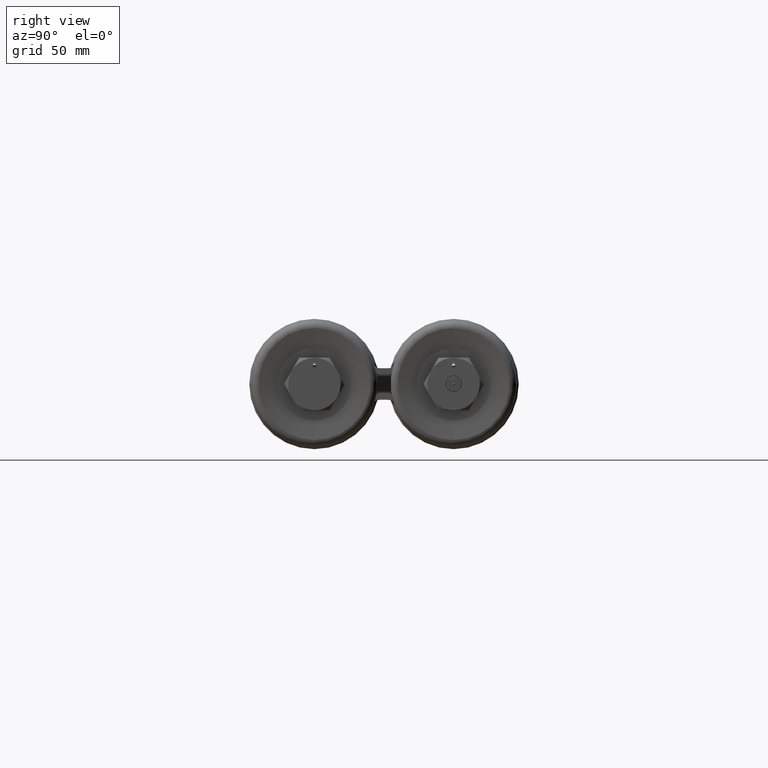
[diagram: clean part render]
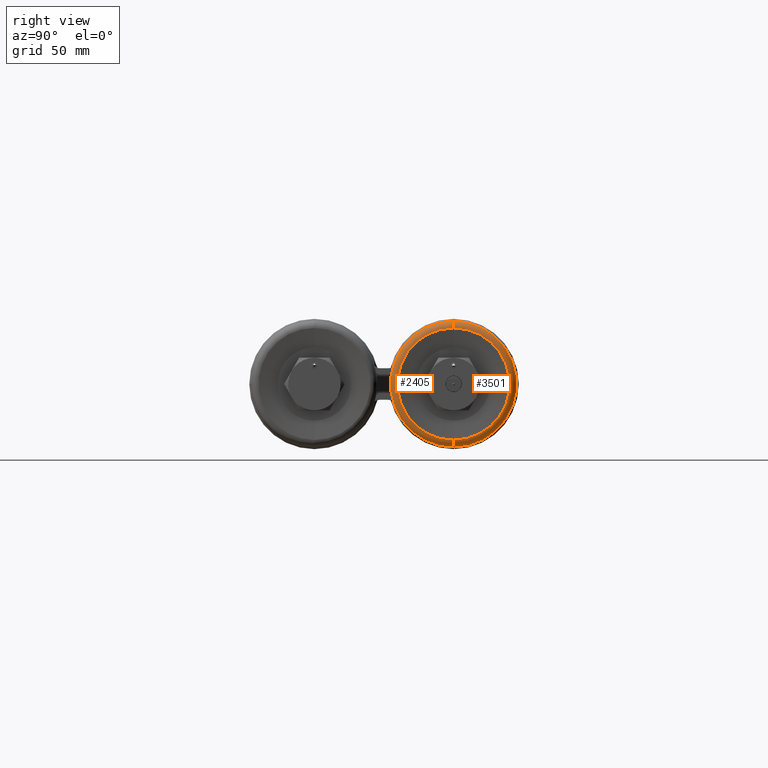
[diagram: same view with one multi-face feature highlighted, each face labeled with its STEP entity id]
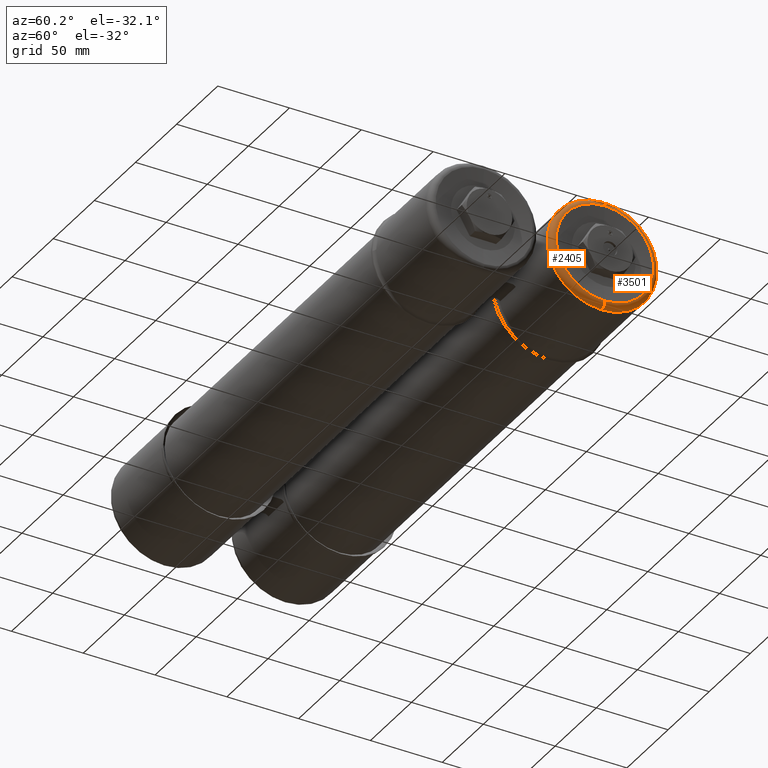
[diagram: same view with one multi-face feature highlighted, each face labeled with its STEP entity id]
A machine part, right view. The highlighted faces form ONE feature: a constant-radius fillet chain: 2 tangent blend faces with common blend radius 4.1656 mm. The faces share edges in the B-rep.
A second angle (auxiliary view) of the same feature is appended — it is thin or edge-on in the first view.
Their STEP definitions:
[1] entity #2405 (Torus):
#848 = VERTEX_POINT ( 'NONE', #37305 ) ;
#1687 = VERTEX_POINT ( 'NONE', #24630 ) ;
#2405 = ADVANCED_FACE ( 'NONE', ( #13390 ), #16985, .T. ) ;
#4310 = DIRECTION ( 'NONE',  ( 6.121189672418027576E-17, -1.000000000000000000, -4.744468706796572334E-16 ) ) ;
#4321 = DIRECTION ( 'NONE',  ( -5.226952353544025296E-16, -3.644893920832906790E-16, 1.000000000000000000 ) ) ;
#4595 = CIRCLE ( 'NONE', #7100, 0.1639999999999999514 ) ;
#5112 = EDGE_CURVE ( 'NONE', #34993, #30570, #4595, .T. ) ;
#5935 = CARTESIAN_POINT ( 'NONE',  ( 15.09600000000000009, 3.311999999999966082, -1.498999999999999222 ) ) ;
#6803 = ORIENTED_EDGE ( 'NONE', *, *, #27813, .F. ) ;
#7100 = AXIS2_PLACEMENT_3D ( 'NONE', #26709, #12050, #38293 ) ;
#7965 = EDGE_LOOP ( 'NONE', ( #29999, #16382, #29954, #6803 ) ) ;
#8788 = DIRECTION ( 'NONE',  ( -1.000000000000000000, -6.121189672418002924E-17, -5.226952353544025296E-16 ) ) ;
#10408 = CARTESIAN_POINT ( 'NONE',  ( 15.26000000000000334, 3.311999999999965194, 3.819233170451234709E-16 ) ) ;
#10426 = AXIS2_PLACEMENT_3D ( 'NONE', #10408, #37036, #22521 ) ;
#12050 = DIRECTION ( 'NONE',  ( -6.121189672418033739E-17, 1.000000000000000000, 5.969115505943929732E-16 ) ) ;
#13390 = FACE_OUTER_BOUND ( 'NONE', #7965, .T. ) ;
#16294 = DIRECTION ( 'NONE',  ( 0.000000000000000000, 0.000000000000000000, -1.000000000000000000 ) ) ;
#16382 = ORIENTED_EDGE ( 'NONE', *, *, #20228, .T. ) ;
#16674 = CIRCLE ( 'NONE', #19787, 1.498999999999999666 ) ;
#16985 = TOROIDAL_SURFACE ( 'NONE', #31973, 1.334999999999999520, 0.1640000000000000069 ) ;
#19787 = AXIS2_PLACEMENT_3D ( 'NONE', #36017, #8788, #23866 ) ;
#20228 = EDGE_CURVE ( 'NONE', #34993, #848, #22279, .T. ) ;
#22279 = CIRCLE ( 'NONE', #10426, 1.334999999999999742 ) ;
#22521 = DIRECTION ( 'NONE',  ( 0.000000000000000000, -4.092656170283541089E-16, 1.000000000000000000 ) ) ;
#23866 = DIRECTION ( 'NONE',  ( 0.000000000000000000, -3.644893920832907283E-16, 1.000000000000000000 ) ) ;
#24630 = CARTESIAN_POINT ( 'NONE',  ( 15.09600000000000009, 3.311999999999964750, 1.499000000000000110 ) ) ;
#25680 = CARTESIAN_POINT ( 'NONE',  ( 15.09600000000000364, 3.311999999999964750, 1.335000000000000187 ) ) ;
#26709 = CARTESIAN_POINT ( 'NONE',  ( 15.09600000000000364, 3.311999999999965638, -1.334999999999999520 ) ) ;
#26841 = EDGE_CURVE ( 'NONE', #848, #1687, #28539, .T. ) ;
#27591 = CARTESIAN_POINT ( 'NONE',  ( 15.26000000000000334, 3.311999999999966082, -1.334999999999999298 ) ) ;
#27813 = EDGE_CURVE ( 'NONE', #30570, #1687, #16674, .T. ) ;
#28539 = CIRCLE ( 'NONE', #36029, 0.1639999999999999514 ) ;
#29954 = ORIENTED_EDGE ( 'NONE', *, *, #26841, .T. ) ;
#29999 = ORIENTED_EDGE ( 'NONE', *, *, #5112, .F. ) ;
#30570 = VERTEX_POINT ( 'NONE', #5935 ) ;
#31191 = DIRECTION ( 'NONE',  ( -1.000000000000000000, -6.121189672418002924E-17, -5.226952353544025296E-16 ) ) ;
#31973 = AXIS2_PLACEMENT_3D ( 'NONE', #34099, #31191, #4321 ) ;
#34099 = CARTESIAN_POINT ( 'NONE',  ( 15.09600000000000364, 3.311999999999965194, 2.995077356023238708E-16 ) ) ;
#34993 = VERTEX_POINT ( 'NONE', #27591 ) ;
#36017 = CARTESIAN_POINT ( 'NONE',  ( 15.09600000000000009, 3.311999999999965194, 2.995077356023228848E-16 ) ) ;
#36029 = AXIS2_PLACEMENT_3D ( 'NONE', #25680, #4310, #16294 ) ;
#37036 = DIRECTION ( 'NONE',  ( -1.000000000000000000, -6.121189672418002924E-17, -5.226952353544025296E-16 ) ) ;
#37305 = CARTESIAN_POINT ( 'NONE',  ( 15.26000000000000334, 3.311999999999964750, 1.335000000000000187 ) ) ;
#38293 = DIRECTION ( 'NONE',  ( 0.000000000000000000, 0.000000000000000000, 1.000000000000000000 ) ) ;
[2] entity #3501 (Torus):
#203 = TOROIDAL_SURFACE ( 'NONE', #35867, 1.334999999999999520, 0.1640000000000000069 ) ;
#848 = VERTEX_POINT ( 'NONE', #37305 ) ;
#1219 = AXIS2_PLACEMENT_3D ( 'NONE', #34398, #24644, #22088 ) ;
#1687 = VERTEX_POINT ( 'NONE', #24630 ) ;
#2016 = ORIENTED_EDGE ( 'NONE', *, *, #5112, .T. ) ;
#2226 = DIRECTION ( 'NONE',  ( -1.000000000000000000, -6.121189672418002924E-17, -5.226952353544025296E-16 ) ) ;
#3501 = ADVANCED_FACE ( 'NONE', ( #32467 ), #203, .T. ) ;
#4310 = DIRECTION ( 'NONE',  ( 6.121189672418027576E-17, -1.000000000000000000, -4.744468706796572334E-16 ) ) ;
#4595 = CIRCLE ( 'NONE', #7100, 0.1639999999999999514 ) ;
#5112 = EDGE_CURVE ( 'NONE', #34993, #30570, #4595, .T. ) ;
#5606 = DIRECTION ( 'NONE',  ( -5.226952353544025296E-16, -3.644893920832906790E-16, 1.000000000000000000 ) ) ;
#5935 = CARTESIAN_POINT ( 'NONE',  ( 15.09600000000000009, 3.311999999999966082, -1.498999999999999222 ) ) ;
#7100 = AXIS2_PLACEMENT_3D ( 'NONE', #26709, #12050, #38293 ) ;
#7507 = ORIENTED_EDGE ( 'NONE', *, *, #32642, .T. ) ;
#8358 = DIRECTION ( 'NONE',  ( -1.000000000000000000, -6.121189672418002924E-17, -5.226952353544025296E-16 ) ) ;
#11115 = CARTESIAN_POINT ( 'NONE',  ( 15.26000000000000334, 3.311999999999965194, 3.819233170451234709E-16 ) ) ;
#12050 = DIRECTION ( 'NONE',  ( -6.121189672418033739E-17, 1.000000000000000000, 5.969115505943929732E-16 ) ) ;
#14237 = DIRECTION ( 'NONE',  ( 0.000000000000000000, -4.092656170283541089E-16, 1.000000000000000000 ) ) ;
#16050 = EDGE_CURVE ( 'NONE', #1687, #30570, #21870, .T. ) ;
#16294 = DIRECTION ( 'NONE',  ( 0.000000000000000000, 0.000000000000000000, -1.000000000000000000 ) ) ;
#16668 = ORIENTED_EDGE ( 'NONE', *, *, #16050, .F. ) ;
#18269 = AXIS2_PLACEMENT_3D ( 'NONE', #11115, #2226, #14237 ) ;
#19373 = EDGE_LOOP ( 'NONE', ( #7507, #2016, #16668, #30502 ) ) ;
#21870 = CIRCLE ( 'NONE', #1219, 1.498999999999999666 ) ;
#22088 = DIRECTION ( 'NONE',  ( 0.000000000000000000, -3.644893920832907283E-16, 1.000000000000000000 ) ) ;
#23219 = CIRCLE ( 'NONE', #18269, 1.334999999999999742 ) ;
#23250 = CARTESIAN_POINT ( 'NONE',  ( 15.09600000000000364, 3.311999999999965194, 2.995077356023238708E-16 ) ) ;
#24630 = CARTESIAN_POINT ( 'NONE',  ( 15.09600000000000009, 3.311999999999964750, 1.499000000000000110 ) ) ;
#24644 = DIRECTION ( 'NONE',  ( -1.000000000000000000, -6.121189672418002924E-17, -5.226952353544025296E-16 ) ) ;
#25680 = CARTESIAN_POINT ( 'NONE',  ( 15.09600000000000364, 3.311999999999964750, 1.335000000000000187 ) ) ;
#26709 = CARTESIAN_POINT ( 'NONE',  ( 15.09600000000000364, 3.311999999999965638, -1.334999999999999520 ) ) ;
#26841 = EDGE_CURVE ( 'NONE', #848, #1687, #28539, .T. ) ;
#27591 = CARTESIAN_POINT ( 'NONE',  ( 15.26000000000000334, 3.311999999999966082, -1.334999999999999298 ) ) ;
#28539 = CIRCLE ( 'NONE', #36029, 0.1639999999999999514 ) ;
#30502 = ORIENTED_EDGE ( 'NONE', *, *, #26841, .F. ) ;
#30570 = VERTEX_POINT ( 'NONE', #5935 ) ;
#32467 = FACE_OUTER_BOUND ( 'NONE', #19373, .T. ) ;
#32642 = EDGE_CURVE ( 'NONE', #848, #34993, #23219, .T. ) ;
#34398 = CARTESIAN_POINT ( 'NONE',  ( 15.09600000000000009, 3.311999999999965194, 2.995077356023228848E-16 ) ) ;
#34993 = VERTEX_POINT ( 'NONE', #27591 ) ;
#35867 = AXIS2_PLACEMENT_3D ( 'NONE', #23250, #8358, #5606 ) ;
#36029 = AXIS2_PLACEMENT_3D ( 'NONE', #25680, #4310, #16294 ) ;
#37305 = CARTESIAN_POINT ( 'NONE',  ( 15.26000000000000334, 3.311999999999964750, 1.335000000000000187 ) ) ;
#38293 = DIRECTION ( 'NONE',  ( 0.000000000000000000, 0.000000000000000000, 1.000000000000000000 ) ) ;